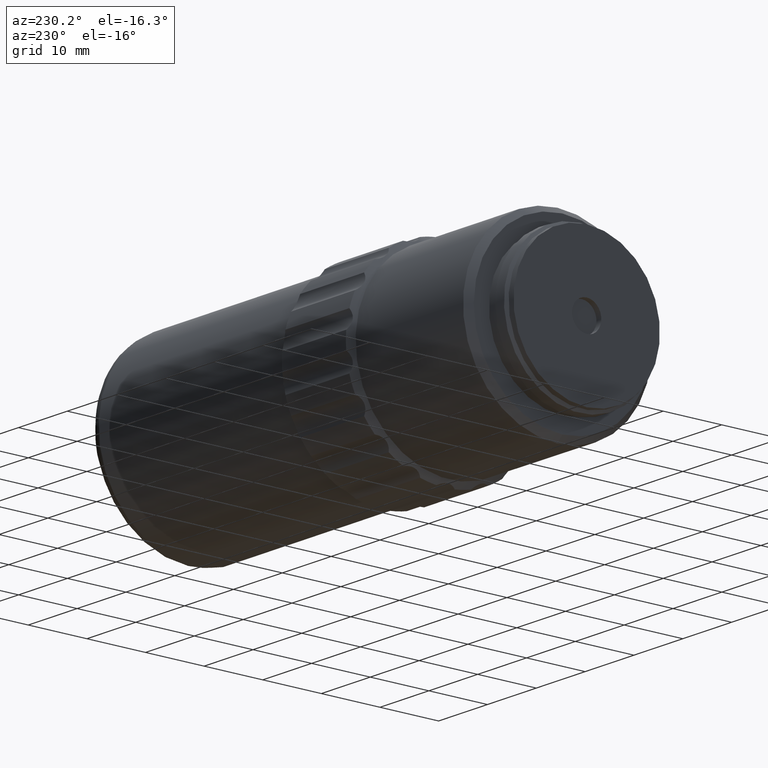
[diagram: clean part render]
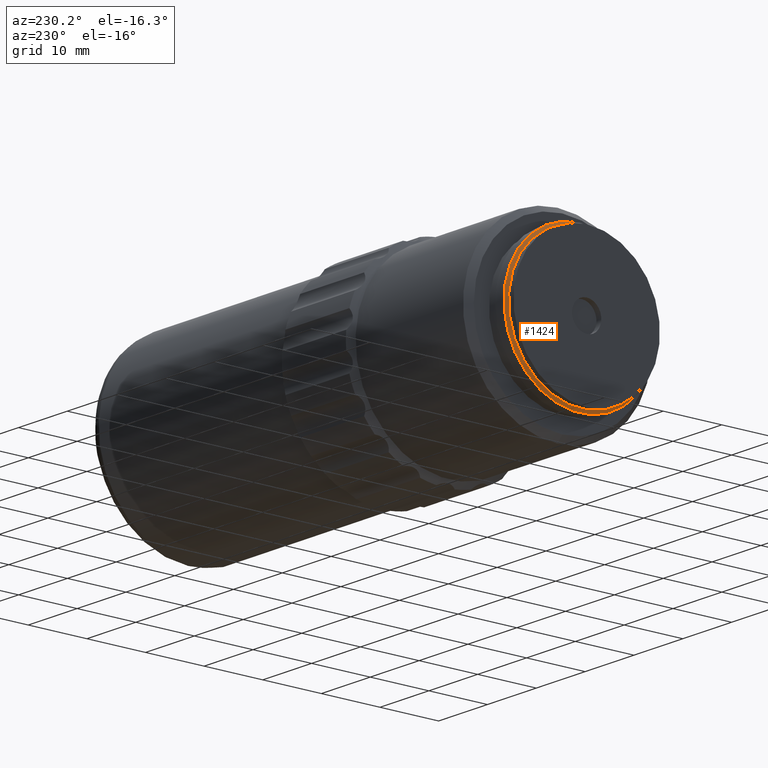
[diagram: same view with one face highlighted and labeled with its STEP entity id]
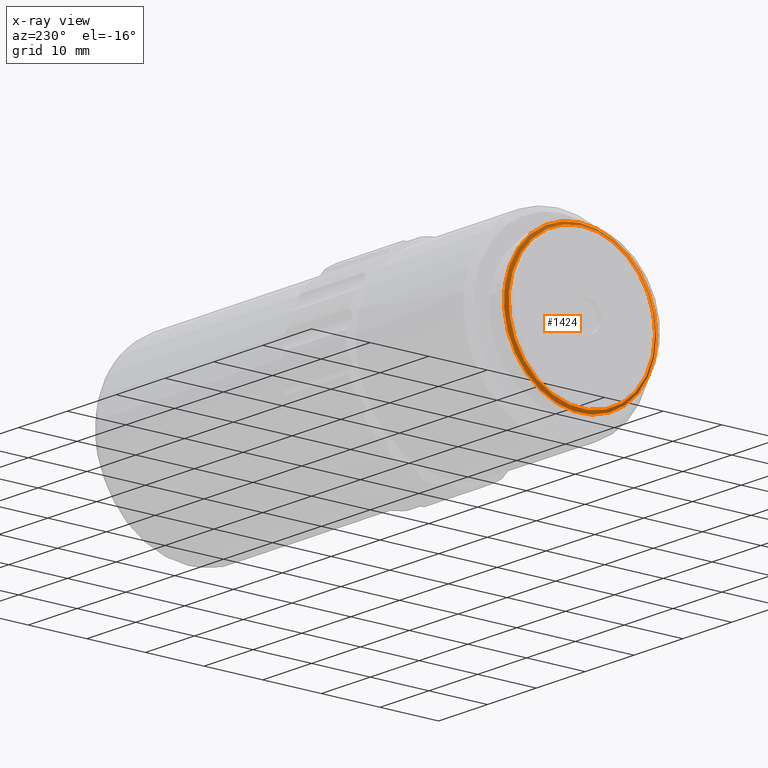
[diagram: x-ray of the same camera — body ghosted, the highlighted face saturated]
A machine part, auxiliary view. The second image highlights one B-rep face of the part: STEP entity #1424.
The next image is the same camera in x-ray: the body ghosted, the highlighted face saturated — about 0% of this face is hidden behind the body in this view.
In plain terms, the highlighted conical surface has half-angle 55 deg.
Its self-contained STEP definition (entity closure, byte-faithful):
#48 = FACE_OUTER_BOUND ( 'NONE', #2193, .T. ) ;
#141 = CARTESIAN_POINT ( 'NONE',  ( 8.337040000000000006, 46.02096199999999726, 0.000000000000000000 ) ) ;
#238 = DIRECTION ( 'NONE',  ( 1.000000000000000000, -0.000000000000000000, 0.000000000000000000 ) ) ;
#354 = AXIS2_PLACEMENT_3D ( 'NONE', #1780, #238, #746 ) ;
#385 = AXIS2_PLACEMENT_3D ( 'NONE', #141, #1345, #2042 ) ;
#582 = FACE_BOUND ( 'NONE', #1745, .T. ) ;
#746 = DIRECTION ( 'NONE',  ( 0.000000000000000000, 0.000000000000000000, -1.000000000000000000 ) ) ;
#750 = CONICAL_SURFACE ( 'NONE', #354, 12.99999999999999822, 0.9599310885968810325 ) ;
#792 = CIRCLE ( 'NONE', #1192, 13.00000000000000178 ) ;
#810 = VERTEX_POINT ( 'NONE', #1708 ) ;
#821 = VERTEX_POINT ( 'NONE', #2196 ) ;
#890 = CARTESIAN_POINT ( 'NONE',  ( 8.687143769104860525, 46.02096199999999726, 0.000000000000000000 ) ) ;
#1133 = ORIENTED_EDGE ( 'NONE', *, *, #1770, .F. ) ;
#1192 = AXIS2_PLACEMENT_3D ( 'NONE', #890, #1214, #1203 ) ;
#1203 = DIRECTION ( 'NONE',  ( 0.000000000000000000, 0.000000000000000000, 1.000000000000000000 ) ) ;
#1214 = DIRECTION ( 'NONE',  ( 1.000000000000000000, -0.000000000000000000, -0.000000000000000000 ) ) ;
#1235 = ORIENTED_EDGE ( 'NONE', *, *, #2011, .T. ) ;
#1345 = DIRECTION ( 'NONE',  ( 1.000000000000000000, 0.000000000000000000, 0.000000000000000000 ) ) ;
#1424 = ADVANCED_FACE ( 'NONE', ( #582, #48 ), #750, .T. ) ;
#1592 = CIRCLE ( 'NONE', #385, 12.49999999999999645 ) ;
#1708 = CARTESIAN_POINT ( 'NONE',  ( 8.337040000000000006, 33.52096200000000437, 0.000000000000000000 ) ) ;
#1745 = EDGE_LOOP ( 'NONE', ( #1235 ) ) ;
#1770 = EDGE_CURVE ( 'NONE', #821, #821, #792, .T. ) ;
#1780 = CARTESIAN_POINT ( 'NONE',  ( 8.687143769104855195, 46.02096199999999726, 0.000000000000000000 ) ) ;
#2011 = EDGE_CURVE ( 'NONE', #810, #810, #1592, .T. ) ;
#2042 = DIRECTION ( 'NONE',  ( 0.000000000000000000, -1.000000000000000000, 0.000000000000000000 ) ) ;
#2193 = EDGE_LOOP ( 'NONE', ( #1133 ) ) ;
#2196 = CARTESIAN_POINT ( 'NONE',  ( 8.687143769104860525, 46.02096199999999726, 13.00000000000000178 ) ) ;